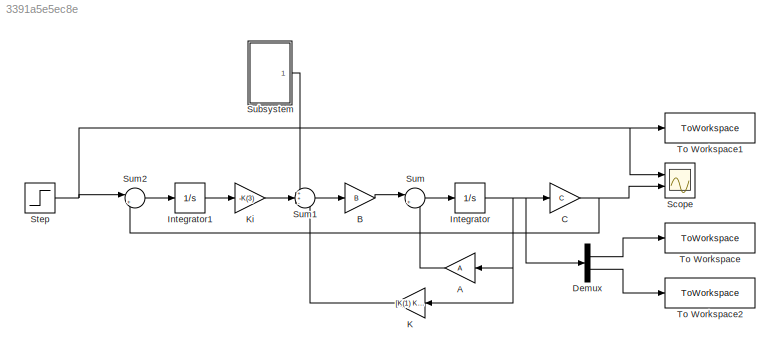
MODEL slx_3391a5e5ec8e
KIND model
CONFIG AbsTol = auto
CONFIG EnableMultiTasking = off
CONFIG FixedStep = auto
CONFIG MaxStep = auto
CONFIG MinStep = auto
CONFIG RelTol = 1e-7
CONFIG SampleTimeConstraint = Unconstrained
CONFIG SolverName = VariableStepAuto
CONFIG StartTime = 0.0
CONFIG StopTime = 10
BLOCK [Gain] A
  Gain = A
  Multiplication = Matrix(K*u)
  NameLocation = top
BLOCK [Gain] B
  Gain = B
  Multiplication = Matrix(K*u)
BLOCK [Gain] C
  Gain = C
  Multiplication = Matrix(K*u)
BLOCK [Demux] Demux
  Outputs = 2
  Ports = [1, 2]
BLOCK [Integrator] Integrator
  Ports = [1, 1]
BLOCK [Integrator] Integrator1
  Ports = [1, 1]
BLOCK [Gain] K
  Gain = [K(1) K(2)]
  Multiplication = Matrix(K*u)
  NameLocation = top
BLOCK [Gain] Ki
  Gain = -K(3)
  Multiplication = Matrix(K*u)
BLOCK [Scope] Scope
  Floating = off
  NumInputPorts = 2
  Ports = [2]
  ScopeSpecificationString = Simulink.scopes.TimeScopeBlockCfg('CurrentConfiguration', extmgr.ConfigurationSet(extmgr.Configuration('Core','General UI',true),extmgr.Configuration('Core','Source UI',true),extmgr.Configuration('Sources','WiredSimulink',true),extmgr.Configuration('Visuals','Time Domain',true,'SerializedDisplays',{struct('MinYLimReal','-1.25','MaxYLimReal','11.25','YLabelReal','','MinYLimMag','0.00000','MaxYLimMa...<+1359ch>
BLOCK [Step] Step
  After = angle
  SampleTime = 0
  Time = 0
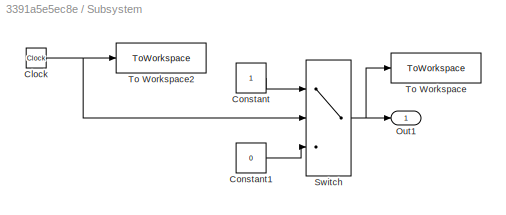
BLOCK [SubSystem] Subsystem
  Ports = [0, 1]
  RequestExecContextInheritance = off
BLOCK [Clock] Subsystem/Clock
BLOCK [Constant] Subsystem/Constant
BLOCK [Constant] Subsystem/Constant1
  Value = 0
BLOCK [Outport] Subsystem/Out1
BLOCK [Switch] Subsystem/Switch
  Criteria = u2 > Threshold
  InputSameDT = off
  SaturateOnIntegerOverflow = off
  Threshold = 20
BLOCK [ToWorkspace] Subsystem/To Workspace
  FixptAsFi = on
  MaxDataPoints = inf
  Ports = [1]
  SampleTime = -1
  SaveFormat = Timeseries
  VariableName = disturbance
BLOCK [ToWorkspace] Subsystem/To Workspace2
  FixptAsFi = on
  MaxDataPoints = inf
  Ports = [1]
  SampleTime = -1
  VariableName = time
BLOCK [Sum] Sum
  Inputs = |++
  Ports = [2, 1]
BLOCK [Sum] Sum1
  Inputs = ++-
  Ports = [3, 1]
BLOCK [Sum] Sum2
  Inputs = |+-
  Ports = [2, 1]
BLOCK [ToWorkspace] To Workspace
  FixptAsFi = on
  MaxDataPoints = inf
  Ports = [1]
  SampleTime = -1
  VariableName = X1
BLOCK [ToWorkspace] To Workspace1
  FixptAsFi = on
  MaxDataPoints = inf
  Ports = [1]
  SampleTime = -1
  VariableName = ref
BLOCK [ToWorkspace] To Workspace2
  FixptAsFi = on
  MaxDataPoints = inf
  Ports = [1]
  SampleTime = -1
  VariableName = X2
LINE A:1 -> Sum:2
LINE B:1 -> Sum:1
NET C:1 -> Scope:2, Sum2:2
LINE Demux:1 -> To Workspace:1
LINE Demux:2 -> To Workspace2:1
LINE Integrator1:1 -> Ki:1
NET Integrator:1 -> A:1, C:1, Demux:1, K:1
LINE K:1 -> Sum1:3
LINE Ki:1 -> Sum1:2
NET Step:1 -> Scope:1, Sum2:1, To Workspace1:1
NET Subsystem/Clock:1 -> Subsystem/Switch:2, Subsystem/To Workspace2:1
LINE Subsystem/Constant1:1 -> Subsystem/Switch:3
LINE Subsystem/Constant:1 -> Subsystem/Switch:1
NET Subsystem/Switch:1 -> Subsystem/Out1:1, Subsystem/To Workspace:1
LINE Subsystem:1 -> Sum1:1
LINE Sum1:1 -> B:1
LINE Sum2:1 -> Integrator1:1
LINE Sum:1 -> Integrator:1
note: NET lines group one-source signal fan-out (src -> all destinations, sorted); 1:1 wires keep LINE
